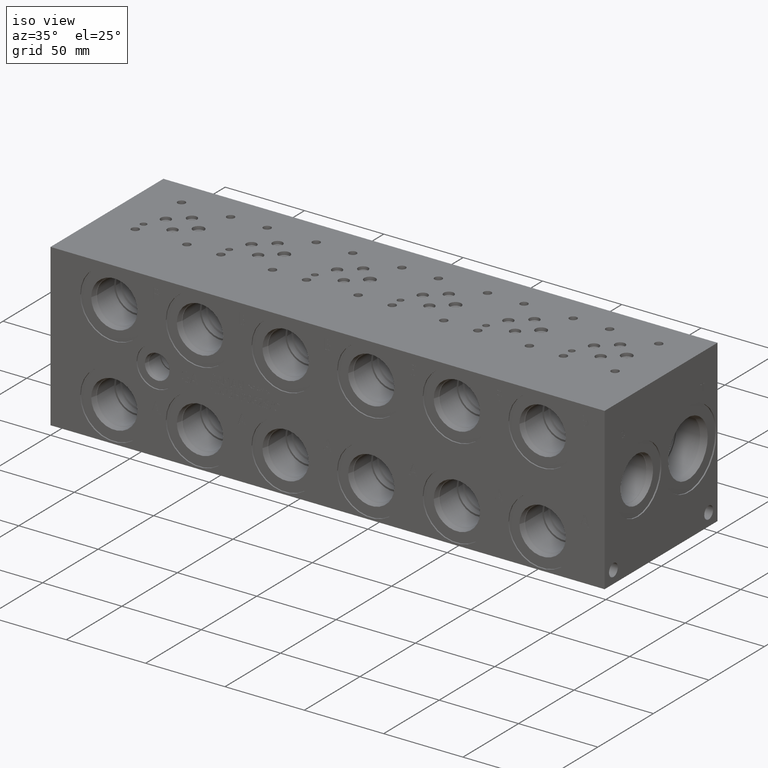
[diagram: clean part render]
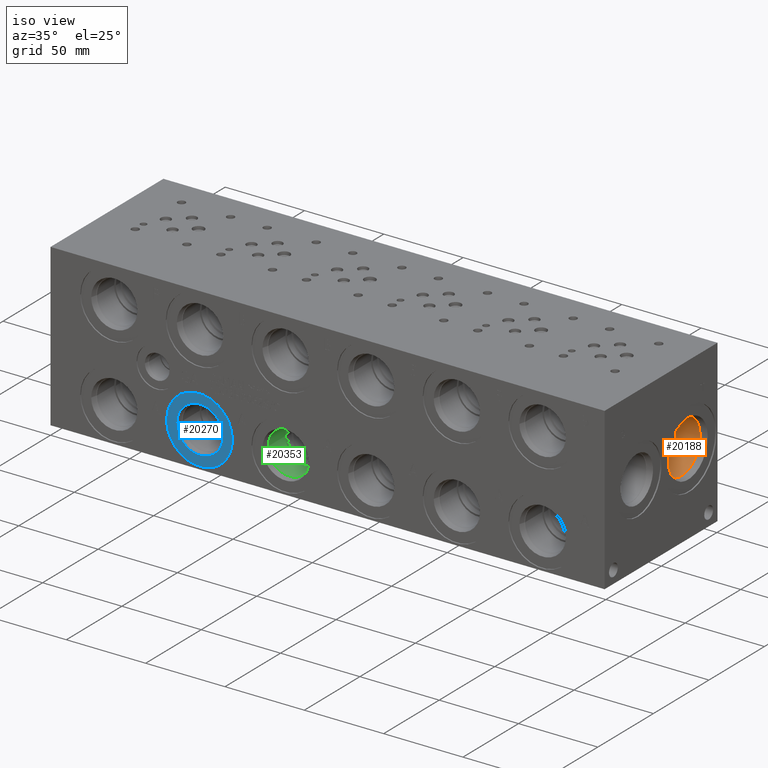
[diagram: same view with three faces highlighted in distinct colors, each labeled with its STEP entity id]
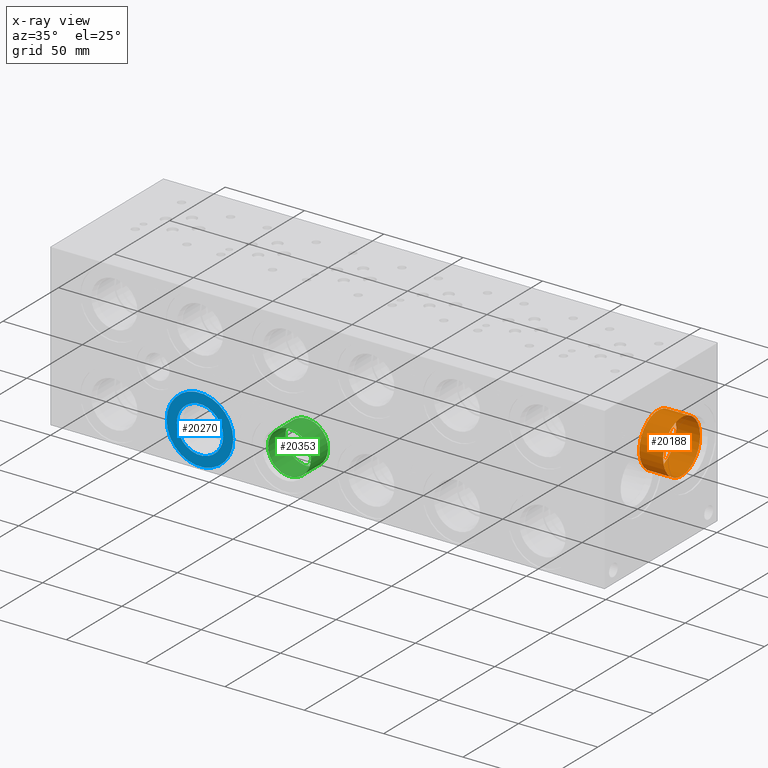
[diagram: x-ray of the same camera — body ghosted, the three highlighted faces saturated]
A machine part, iso view with three faces highlighted in distinct colors.
The next image is the same camera in x-ray (body ghosted, the three faces saturated) — at least one of them is partly hidden behind the body in this view.
Their STEP definitions:

[orange] entity #20188 — the highlighted cylindrical surface (bore or boss wall) has radius 16.6751 mm, axis along (1, 0, 0).
#173=CYLINDRICAL_SURFACE('',#21157,16.6751);
#700=CIRCLE('',#21154,16.6751);
#701=CIRCLE('',#21155,16.6751);
#703=CIRCLE('',#21158,16.6751);
#2690=FACE_OUTER_BOUND('',#3863,.T.);
#3863=EDGE_LOOP('',(#16520,#16521,#16522,#16523,#16524));
#5723=LINE('',#34068,#7414);
#7414=VECTOR('',#24694,16.6751);
#9062=VERTEX_POINT('',#34059);
#9063=VERTEX_POINT('',#34060);
#9065=VERTEX_POINT('',#34066);
#11711=EDGE_CURVE('',#9062,#9063,#700,.T.);
#11712=EDGE_CURVE('',#9063,#9062,#701,.T.);
#11714=EDGE_CURVE('',#9065,#9065,#703,.T.);
#11715=EDGE_CURVE('',#9065,#9063,#5723,.T.);
#16520=ORIENTED_EDGE('',*,*,#11714,.F.);
#16521=ORIENTED_EDGE('',*,*,#11715,.T.);
#16522=ORIENTED_EDGE('',*,*,#11711,.F.);
#16523=ORIENTED_EDGE('',*,*,#11712,.F.);
#16524=ORIENTED_EDGE('',*,*,#11715,.F.);
#20188=ADVANCED_FACE('',(#2690),#173,.F.);
#21154=AXIS2_PLACEMENT_3D('',#34061,#24684,#24685);
#21155=AXIS2_PLACEMENT_3D('',#34062,#24686,#24687);
#21157=AXIS2_PLACEMENT_3D('',#34065,#24690,#24691);
#21158=AXIS2_PLACEMENT_3D('',#34067,#24692,#24693);
#24684=DIRECTION('center_axis',(1.,0.,0.));
#24685=DIRECTION('ref_axis',(0.,1.,0.));
#24686=DIRECTION('center_axis',(1.,0.,0.));
#24687=DIRECTION('ref_axis',(0.,1.,0.));
#24690=DIRECTION('center_axis',(1.,0.,0.));
#24691=DIRECTION('ref_axis',(0.,1.,0.));
#24692=DIRECTION('center_axis',(-1.,0.,0.));
#24693=DIRECTION('ref_axis',(0.,1.,0.));
#24694=DIRECTION('',(-1.,0.,0.));
#34059=CARTESIAN_POINT('',(329.4126,92.8751,50.8));
#34060=CARTESIAN_POINT('',(329.4126,59.5249,50.8));
#34061=CARTESIAN_POINT('Origin',(329.4126,76.2,50.8));
#34062=CARTESIAN_POINT('Origin',(329.4126,76.2,50.8));
#34065=CARTESIAN_POINT('Origin',(339.3313,76.2,50.8));
#34066=CARTESIAN_POINT('',(344.426321153229,59.5249,50.8));
#34067=CARTESIAN_POINT('Origin',(344.426321153229,76.2,50.8));
#34068=CARTESIAN_POINT('',(339.3313,59.5249,50.8));

[blue] entity #20270 — the highlighted planar face has unit normal (0, 1, 0).
#830=CIRCLE('',#21366,21.0185);
#831=CIRCLE('',#21367,21.0185);
#832=CIRCLE('',#21369,14.5923);
#833=CIRCLE('',#21370,14.5923);
#1867=FACE_BOUND('',#3961,.T.);
#2772=FACE_OUTER_BOUND('',#3960,.T.);
#3960=EDGE_LOOP('',(#16936,#16937));
#3961=EDGE_LOOP('',(#16938,#16939));
#9198=VERTEX_POINT('',#34473);
#9199=VERTEX_POINT('',#34475);
#9200=VERTEX_POINT('',#34479);
#9201=VERTEX_POINT('',#34480);
#11908=EDGE_CURVE('',#9198,#9199,#830,.T.);
#11909=EDGE_CURVE('',#9199,#9198,#831,.T.);
#11910=EDGE_CURVE('',#9200,#9201,#832,.T.);
#11911=EDGE_CURVE('',#9201,#9200,#833,.T.);
#16936=ORIENTED_EDGE('',*,*,#11909,.F.);
#16937=ORIENTED_EDGE('',*,*,#11908,.F.);
#16938=ORIENTED_EDGE('',*,*,#11910,.T.);
#16939=ORIENTED_EDGE('',*,*,#11911,.T.);
#18760=PLANE('',#21368);
#20270=ADVANCED_FACE('',(#2772,#1867),#18760,.F.);
#21366=AXIS2_PLACEMENT_3D('',#34476,#25175,#25176);
#21367=AXIS2_PLACEMENT_3D('',#34477,#25177,#25178);
#21368=AXIS2_PLACEMENT_3D('',#34478,#25179,#25180);
#21369=AXIS2_PLACEMENT_3D('',#34481,#25181,#25182);
#21370=AXIS2_PLACEMENT_3D('',#34482,#25183,#25184);
#25175=DIRECTION('center_axis',(0.,1.,0.));
#25176=DIRECTION('ref_axis',(1.,0.,0.));
#25177=DIRECTION('center_axis',(0.,1.,0.));
#25178=DIRECTION('ref_axis',(1.,0.,0.));
#25179=DIRECTION('center_axis',(0.,1.,0.));
#25180=DIRECTION('ref_axis',(0.,0.,1.));
#25181=DIRECTION('center_axis',(0.,1.,0.));
#25182=DIRECTION('ref_axis',(1.,0.,0.));
#25183=DIRECTION('center_axis',(0.,1.,0.));
#25184=DIRECTION('ref_axis',(1.,0.,0.));
#34473=CARTESIAN_POINT('',(72.6313,0.7874,22.225));
#34475=CARTESIAN_POINT('',(114.6683,0.7874,22.225));
#34476=CARTESIAN_POINT('Origin',(93.6498,0.7874,22.225));
#34477=CARTESIAN_POINT('Origin',(93.6498,0.7874,22.225));
#34478=CARTESIAN_POINT('Origin',(108.2421,0.7874,22.225));
#34479=CARTESIAN_POINT('',(108.2421,0.7874,22.225));
#34480=CARTESIAN_POINT('',(79.0575,0.7874,22.225));
#34481=CARTESIAN_POINT('Origin',(93.6498,0.7874,22.225));
#34482=CARTESIAN_POINT('Origin',(93.6498,0.7874,22.225));

[green] entity #20353 — the highlighted cylindrical surface (bore or boss wall) has radius 13.5001 mm, axis along (0, -1, 0).
#249=CYLINDRICAL_SURFACE('',#21571,13.5001);
#656=CIRCLE('',#21082,13.5001);
#949=CIRCLE('',#21568,13.5001);
#950=CIRCLE('',#21569,13.5001);
#2855=FACE_OUTER_BOUND('',#4056,.T.);
#4056=EDGE_LOOP('',(#17321,#17322,#17323,#17324,#17325));
#5860=LINE('',#34883,#7551);
#7551=VECTOR('',#25657,13.5001);
#9015=VERTEX_POINT('',#33917);
#9328=VERTEX_POINT('',#34876);
#9329=VERTEX_POINT('',#34877);
#11645=EDGE_CURVE('',#9015,#9015,#656,.T.);
#12097=EDGE_CURVE('',#9328,#9329,#949,.T.);
#12098=EDGE_CURVE('',#9329,#9328,#950,.T.);
#12100=EDGE_CURVE('',#9015,#9329,#5860,.T.);
#17321=ORIENTED_EDGE('',*,*,#11645,.T.);
#17322=ORIENTED_EDGE('',*,*,#12100,.T.);
#17323=ORIENTED_EDGE('',*,*,#12097,.F.);
#17324=ORIENTED_EDGE('',*,*,#12098,.F.);
#17325=ORIENTED_EDGE('',*,*,#12100,.F.);
#20353=ADVANCED_FACE('',(#2855),#249,.F.);
#21082=AXIS2_PLACEMENT_3D('',#33919,#24518,#24519);
#21568=AXIS2_PLACEMENT_3D('',#34878,#25649,#25650);
#21569=AXIS2_PLACEMENT_3D('',#34879,#25651,#25652);
#21571=AXIS2_PLACEMENT_3D('',#34882,#25655,#25656);
#24518=DIRECTION('center_axis',(0.,-1.,0.));
#24519=DIRECTION('ref_axis',(1.,0.,0.));
#25649=DIRECTION('center_axis',(0.,-1.,0.));
#25650=DIRECTION('ref_axis',(1.,0.,0.));
#25651=DIRECTION('center_axis',(0.,-1.,0.));
#25652=DIRECTION('ref_axis',(1.,0.,0.));
#25655=DIRECTION('center_axis',(0.,-1.,0.));
#25656=DIRECTION('ref_axis',(1.,0.,0.));
#25657=DIRECTION('',(0.,1.,0.));
#33917=CARTESIAN_POINT('',(134.1247,4.27990000000001,22.225));
#33919=CARTESIAN_POINT('Origin',(147.6248,4.27990000000001,22.225));
#34876=CARTESIAN_POINT('',(161.1249,19.8374,22.225));
#34877=CARTESIAN_POINT('',(134.1247,19.8374,22.225));
#34878=CARTESIAN_POINT('Origin',(147.6248,19.8374,22.225));
#34879=CARTESIAN_POINT('Origin',(147.6248,19.8374,22.225));
#34882=CARTESIAN_POINT('Origin',(147.6248,9.9187,22.225));
#34883=CARTESIAN_POINT('',(134.1247,9.9187,22.225));